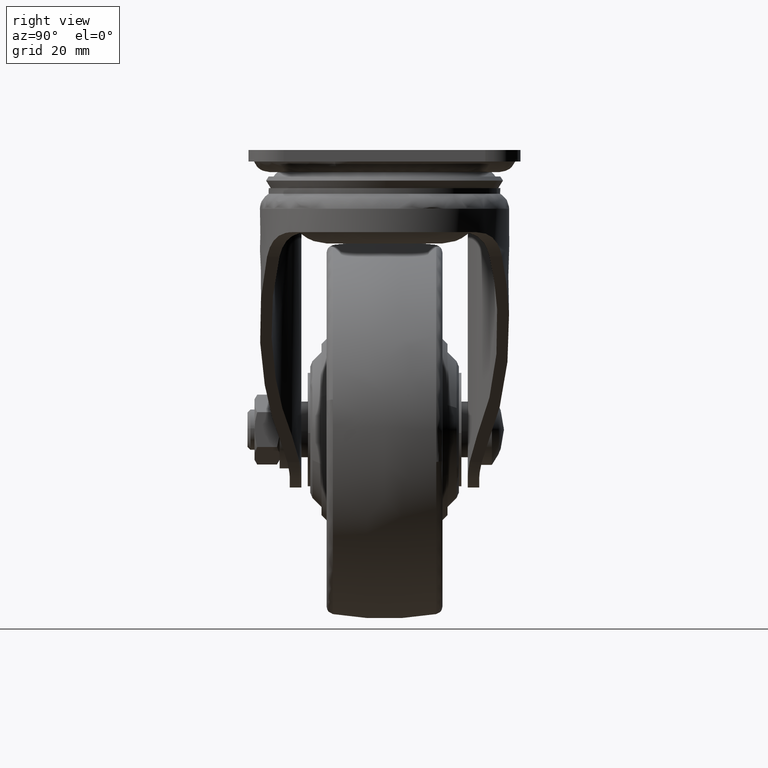
[diagram: clean part render]
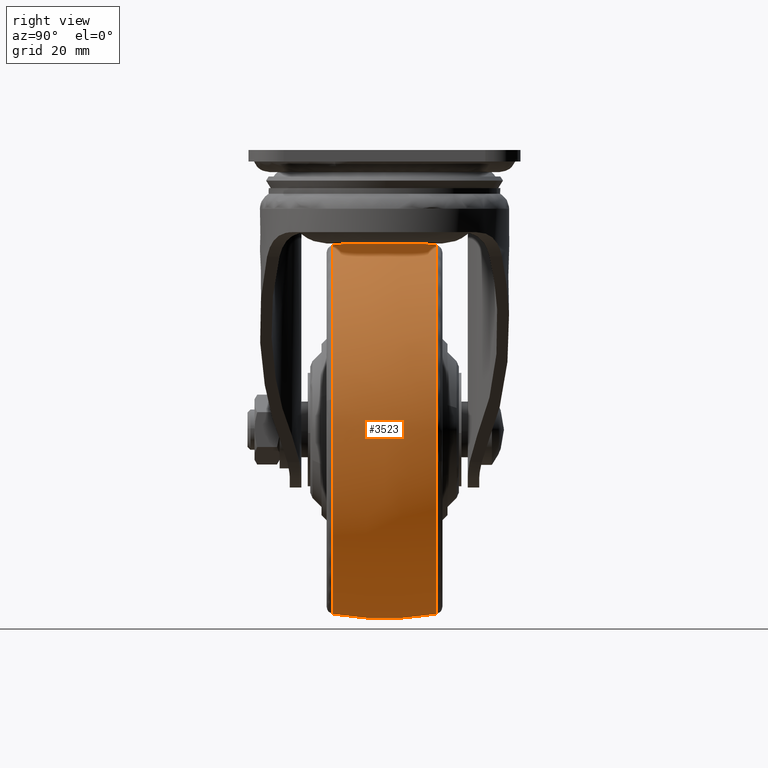
[diagram: same view with one face highlighted and labeled with its STEP entity id]
A machine part, right view. The second image highlights one B-rep face of the part: STEP entity #3523.
In plain terms, the highlighted face is a freeform B-spline surface patch.
Its self-contained STEP definition (entity closure, byte-faithful):
#3327=CARTESIAN_POINT('',(-25.0,10.256395196806830,-18.883067754757100));
#3328=VERTEX_POINT('',#3327);
#3342=CARTESIAN_POINT('',(11.051679945976341,10.256395409143741,-61.908754388801512));
#3343=VERTEX_POINT('',#3342);
#3344=CARTESIAN_POINT('',(11.051679945976336,10.256395409143739,-61.908754388801512));
#3345=CARTESIAN_POINT('',(11.616885805012009,10.256395401297505,-58.729278164535160));
#3346=CARTESIAN_POINT('',(11.616885751895840,10.256395391933699,-55.499955196772547));
#3347=CARTESIAN_POINT('',(11.616885149618469,10.256395285758741,-18.883067844468020));
#3348=CARTESIAN_POINT('',(-25.0,10.256395196806830,-18.883067754757100));
#3356=(BOUNDED_CURVE()B_SPLINE_CURVE(2,(#3344,#3345,#3346,#3347,#3348),.UNSPECIFIED.,.F.,.U.)B_SPLINE_CURVE_WITH_KNOTS((3,2,3),(0.219918255239269,0.250000000000000,0.500000000000000),.UNSPECIFIED.)CURVE()GEOMETRIC_REPRESENTATION_ITEM()RATIONAL_B_SPLINE_CURVE((0.937995444500692,0.964757043798019,1.0,0.707106781186548,1.0))REPRESENTATION_ITEM(''));
#3357=EDGE_CURVE('',#3343,#3328,#3356,.T.);
#3400=CARTESIAN_POINT('',(-25.0,10.256395196838360,-92.116842245236072));
#3401=VERTEX_POINT('',#3400);
#3402=CARTESIAN_POINT('',(-25.0,10.256395196838360,-92.116842245236072));
#3403=CARTESIAN_POINT('',(5.681678579301472,10.256395302997543,-92.116842352301106));
#3404=CARTESIAN_POINT('',(11.051679945976336,10.256395409143739,-61.908754388801512));
#3412=(BOUNDED_CURVE()B_SPLINE_CURVE(2,(#3402,#3403,#3404),.UNSPECIFIED.,.F.,.U.)B_SPLINE_CURVE_WITH_KNOTS((3,3),(0.0,0.219918255239269),.UNSPECIFIED.)CURVE()GEOMETRIC_REPRESENTATION_ITEM()RATIONAL_B_SPLINE_CURVE((1.0,0.742349737388528,0.937995444500692))REPRESENTATION_ITEM(''));
#3413=EDGE_CURVE('',#3401,#3343,#3412,.T.);
#3435=CARTESIAN_POINT('',(-24.999999999999996,-11.292784219613205,-91.927648188934313));
#3436=CARTESIAN_POINT('',(-25.0,-5.697302579478876,-92.999954999999318));
#3437=CARTESIAN_POINT('',(-25.0,6.061801E-015,-92.999954999999318));
#3438=CARTESIAN_POINT('',(-25.000000000000004,5.697298345646191,-92.999954999999318));
#3439=CARTESIAN_POINT('',(-25.000000000000004,11.292775977593738,-91.927649768417680));
#3440=CARTESIAN_POINT('',(11.427693188934988,-11.292784219613202,-91.927648188934327));
#3441=CARTESIAN_POINT('',(12.500000000000000,-5.697302579478877,-92.999954999999318));
#3442=CARTESIAN_POINT('',(12.500000000000000,6.061801E-015,-92.999954999999304));
#3443=CARTESIAN_POINT('',(12.500000000000007,5.697298345646192,-92.999954999999332));
#3444=CARTESIAN_POINT('',(11.427694768418370,11.292775977593745,-91.927649768417695));
#3445=CARTESIAN_POINT('',(11.427693188934999,-11.292784219613205,-55.499954999999318));
#3446=CARTESIAN_POINT('',(12.500000000000007,-5.697302579478876,-55.499954999999311));
#3447=CARTESIAN_POINT('',(12.500000000000000,6.061801E-015,-55.499954999999318));
#3448=CARTESIAN_POINT('',(12.500000000000002,5.697298345646191,-55.499954999999325));
#3449=CARTESIAN_POINT('',(11.427694768418368,11.292775977593738,-55.499954999999304));
#3450=CARTESIAN_POINT('',(11.427693188934988,-11.292784219613202,-19.072261811064337));
#3451=CARTESIAN_POINT('',(12.500000000000000,-5.697302579478877,-17.999954999999325));
#3452=CARTESIAN_POINT('',(12.500000000000000,6.061801E-015,-17.999954999999318));
#3453=CARTESIAN_POINT('',(12.500000000000007,5.697298345646192,-17.999954999999318));
#3454=CARTESIAN_POINT('',(11.427694768418370,11.292775977593745,-19.072260231580945));
#3455=CARTESIAN_POINT('',(-24.999999999999996,-11.292784219613205,-19.072261811064340));
#3456=CARTESIAN_POINT('',(-25.0,-5.697302579478876,-17.999954999999318));
#3457=CARTESIAN_POINT('',(-25.0,6.061801E-015,-17.999954999999321));
#3458=CARTESIAN_POINT('',(-25.000000000000004,5.697298345646191,-17.999954999999318));
#3459=CARTESIAN_POINT('',(-25.000000000000004,11.292775977593738,-19.072260231580952));
#3467=(BOUNDED_SURFACE()B_SPLINE_SURFACE(2,2,((#3435,#3440,#3445,#3450,#3455),(#3436,#3441,#3446,#3451,#3456),(#3437,#3442,#3447,#3452,#3457),(#3438,#3443,#3448,#3453,#3458),(#3439,#3444,#3449,#3454,#3459)),.UNSPECIFIED.,.F.,.F.,.U.)B_SPLINE_SURFACE_WITH_KNOTS((3,2,3),(3,2,3),(0.0,11.620496927450580,23.240985462901719),(0.0,62.132034355964272,124.264068711928500),.UNSPECIFIED.)GEOMETRIC_REPRESENTATION_ITEM()RATIONAL_B_SPLINE_SURFACE(((0.952907862182835,0.673807611195459,0.952907862182835,0.673807611195459,0.952907862182835),(0.971798735468599,0.687165475798358,0.971798735468599,0.687165475798358,0.971798735468599),(1.0,0.707106781186548,1.0,0.707106781186548,1.0),(0.971798755834767,0.687165490199414,0.971798755834767,0.687165490199414,0.971798755834767),(0.952907889467765,0.673807630488818,0.952907889467765,0.673807630488818,0.952907889467765)))REPRESENTATION_ITEM('')SURFACE());
#3468=CARTESIAN_POINT('',(-25.0,-10.256390680393970,-92.116843028808219));
#3469=VERTEX_POINT('',#3468);
#3470=CARTESIAN_POINT('',(-25.0,-10.256390680393970,-92.116843028808219));
#3471=CARTESIAN_POINT('',(-25.0,-6.765547199695130,-92.722838568367465));
#3472=CARTESIAN_POINT('',(-25.0,0.108951471200930,-93.295459521235884));
#3473=CARTESIAN_POINT('',(-25.0,6.977100607055685,-92.686062395245827));
#3474=CARTESIAN_POINT('',(-25.0,10.256395196838360,-92.116842245236072));
#3475=B_SPLINE_CURVE_WITH_KNOTS('',3,(#3470,#3471,#3472,#3473,#3474),.UNSPECIFIED.,.F.,.U.,(4,1,4),(-6.559500E-009,10.629090474673140,20.614027749062441),.UNSPECIFIED.);
#3476=EDGE_CURVE('',#3469,#3401,#3475,.T.);
#3477=ORIENTED_EDGE('',*,*,#3476,.T.);
#3478=ORIENTED_EDGE('',*,*,#3413,.T.);
#3479=ORIENTED_EDGE('',*,*,#3357,.T.);
#3480=CARTESIAN_POINT('',(-25.0,-10.256400468381880,-18.883068669341888));
#3481=VERTEX_POINT('',#3480);
#3482=CARTESIAN_POINT('',(-25.0,-10.256400468381880,-18.883068669341888));
#3483=CARTESIAN_POINT('',(-25.0,-7.770465617525152,-18.451673474936079));
#3484=CARTESIAN_POINT('',(-25.0,-3.920507370778951,-18.031673991244681));
#3485=CARTESIAN_POINT('',(-25.0,2.954209775297385,-17.948607361796530));
#3486=CARTESIAN_POINT('',(-25.0,7.294433290571852,-18.368980086922669));
#3487=CARTESIAN_POINT('',(-25.0,10.256395196806830,-18.883067754757100));
#3488=B_SPLINE_CURVE_WITH_KNOTS('',3,(#3482,#3483,#3484,#3485,#3486,#3487),.UNSPECIFIED.,.F.,.U.,(4,1,1,4),(-6.569746E-009,7.569248594443955,11.595347578762320,20.614037683244408),.UNSPECIFIED.);
#3489=EDGE_CURVE('',#3481,#3328,#3488,.T.);
#3490=ORIENTED_EDGE('',*,*,#3489,.F.);
#3491=CARTESIAN_POINT('',(11.129366505319080,-10.256396579856700,-49.544688500861056));
#3492=VERTEX_POINT('',#3491);
#3493=CARTESIAN_POINT('',(11.129366505319078,-10.256396579856704,-49.544688500861056));
#3494=CARTESIAN_POINT('',(6.075357584006241,-10.256400573143582,-18.883068571471053));
#3495=CARTESIAN_POINT('',(-25.0,-10.256400468381880,-18.883068669341888));
#3503=(BOUNDED_CURVE()B_SPLINE_CURVE(2,(#3493,#3494,#3495),.UNSPECIFIED.,.F.,.U.)B_SPLINE_CURVE_WITH_KNOTS((3,3),(0.277993893151024,0.500000000000000),.UNSPECIFIED.)CURVE()GEOMETRIC_REPRESENTATION_ITEM()RATIONAL_B_SPLINE_CURVE((0.941751128377005,0.739903667075040,1.0))REPRESENTATION_ITEM(''));
#3504=EDGE_CURVE('',#3492,#3481,#3503,.T.);
#3505=ORIENTED_EDGE('',*,*,#3504,.F.);
#3506=CARTESIAN_POINT('',(-25.0,-10.256390680393970,-92.116843028808219));
#3507=CARTESIAN_POINT('',(11.616885136402338,-10.256390769301245,-92.116842945748942));
#3508=CARTESIAN_POINT('',(11.616885730164620,-10.256395768056910,-55.499955668144942));
#3509=CARTESIAN_POINT('',(11.616885778772120,-10.256396177272830,-52.502367050042515));
#3510=CARTESIAN_POINT('',(11.129366505319078,-10.256396579856704,-49.544688500861056));
#3518=(BOUNDED_CURVE()B_SPLINE_CURVE(2,(#3506,#3507,#3508,#3509,#3510),.UNSPECIFIED.,.F.,.U.)B_SPLINE_CURVE_WITH_KNOTS((3,2,3),(0.0,0.250000000000000,0.277993893151024),.UNSPECIFIED.)CURVE()GEOMETRIC_REPRESENTATION_ITEM()RATIONAL_B_SPLINE_CURVE((1.0,0.707106781186547,1.0,0.967203114111508,0.941751128377005))REPRESENTATION_ITEM(''));
#3519=EDGE_CURVE('',#3469,#3492,#3518,.T.);
#3520=ORIENTED_EDGE('',*,*,#3519,.F.);
#3521=EDGE_LOOP('',(#3477,#3478,#3479,#3490,#3505,#3520));
#3522=FACE_OUTER_BOUND('',#3521,.T.);
#3523=ADVANCED_FACE('',(#3522),#3467,.T.);